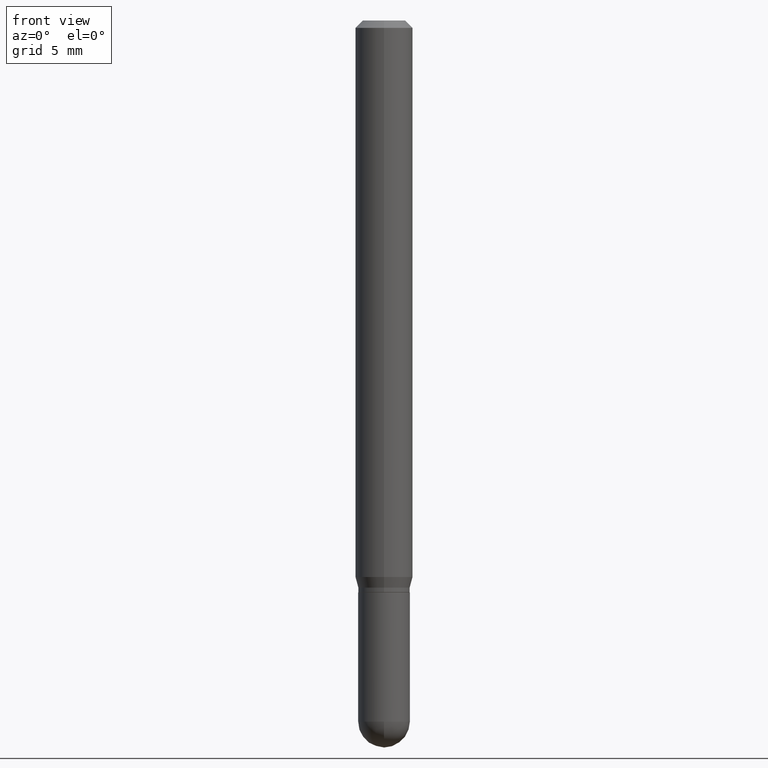
[diagram: clean part render]
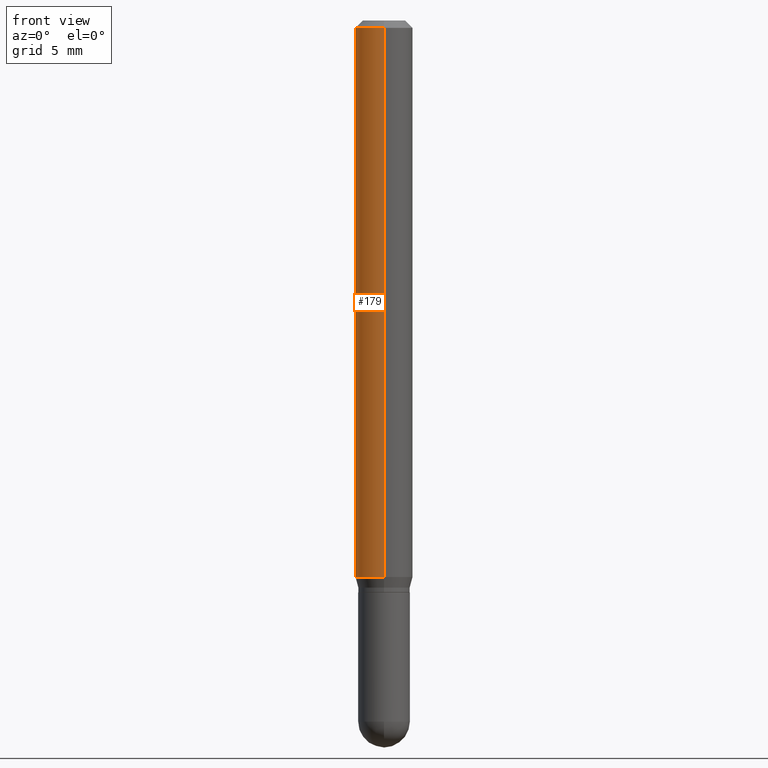
[diagram: same view with one face highlighted and labeled with its STEP entity id]
A machine part, front view. The second image highlights one B-rep face of the part: STEP entity #179.
In plain terms, the highlighted cylindrical surface (edge-blend (fillet) strip) has radius 1.4999 mm, axis along (-0, 0, 1).
Its self-contained STEP definition (entity closure, byte-faithful):
#20 = VECTOR ( 'NONE', #226, 39.37007874015748143 ) ;
#47 = ORIENTED_EDGE ( 'NONE', *, *, #97, .F. ) ;
#48 = CARTESIAN_POINT ( 'NONE',  ( 4.195754854663672510E-16, 0.05904999999999994281, -0.01500000000000029955 ) ) ;
#69 = CARTESIAN_POINT ( 'NONE',  ( -4.123439461173460774E-16, -0.05905000000000400207, -1.145180900235343913 ) ) ;
#97 = EDGE_CURVE ( 'NONE', #266, #203, #117, .T. ) ;
#106 = CARTESIAN_POINT ( 'NONE',  ( 3.668294337304873001E-31, -5.237091507743192669E-17, -0.01500000000000009139 ) ) ;
#114 = EDGE_CURVE ( 'NONE', #203, #503, #351, .T. ) ;
#115 = VERTEX_POINT ( 'NONE', #69 ) ;
#117 = LINE ( 'NONE', #470, #20 ) ;
#125 = DIRECTION ( 'NONE',  ( -2.445529558203233755E-29, 3.491394338495440431E-15, 1.000000000000000000 ) ) ;
#139 = EDGE_CURVE ( 'NONE', #115, #503, #385, .T. ) ;
#159 = DIRECTION ( 'NONE',  ( -6.982962677686265922E-15, -1.000000000000000000, 3.491394338495440431E-15 ) ) ;
#167 = AXIS2_PLACEMENT_3D ( 'NONE', #365, #125, #159 ) ;
#171 = DIRECTION ( 'NONE',  ( -2.445529558203233755E-29, 3.491394338495440431E-15, 1.000000000000000000 ) ) ;
#179 = ADVANCED_FACE ( 'NONE', ( #270 ), #360, .T. ) ;
#182 = ORIENTED_EDGE ( 'NONE', *, *, #377, .T. ) ;
#188 = VECTOR ( 'NONE', #438, 39.37007874015748143 ) ;
#203 = VERTEX_POINT ( 'NONE', #48 ) ;
#226 = DIRECTION ( 'NONE',  ( -2.445529558203233755E-29, 3.491394338495440431E-15, 1.000000000000000000 ) ) ;
#247 = CARTESIAN_POINT ( 'NONE',  ( 2.800573741015322024E-29, -3.998278111634791463E-15, -1.145180900235343913 ) ) ;
#265 = CARTESIAN_POINT ( 'NONE',  ( -4.123439461173736383E-16, -0.05905000000000005383, -0.01499999999999988495 ) ) ;
#266 = VERTEX_POINT ( 'NONE', #284 ) ;
#270 = FACE_OUTER_BOUND ( 'NONE', #350, .T. ) ;
#274 = CARTESIAN_POINT ( 'NONE',  ( -4.123439461173739834E-16, -0.05904999999999999832, 2.061668356881557438E-16 ) ) ;
#284 = CARTESIAN_POINT ( 'NONE',  ( 4.195754854663670538E-16, 0.05904999999999599458, -1.145180900235344135 ) ) ;
#293 = AXIS2_PLACEMENT_3D ( 'NONE', #106, #352, #477 ) ;
#324 = ORIENTED_EDGE ( 'NONE', *, *, #139, .T. ) ;
#335 = AXIS2_PLACEMENT_3D ( 'NONE', #247, #171, #454 ) ;
#350 = EDGE_LOOP ( 'NONE', ( #47, #182, #324, #458 ) ) ;
#351 = CIRCLE ( 'NONE', #293, 0.05904999999999999832 ) ;
#352 = DIRECTION ( 'NONE',  ( -2.445529558203233755E-29, 3.491394338495440431E-15, 1.000000000000000000 ) ) ;
#360 = CYLINDRICAL_SURFACE ( 'NONE', #167, 0.05904999999999999832 ) ;
#365 = CARTESIAN_POINT ( 'NONE',  ( 0.000000000000000000, 0.000000000000000000, 0.000000000000000000 ) ) ;
#377 = EDGE_CURVE ( 'NONE', #266, #115, #445, .T. ) ;
#385 = LINE ( 'NONE', #274, #188 ) ;
#438 = DIRECTION ( 'NONE',  ( -2.445529558203233755E-29, 3.491394338495440431E-15, 1.000000000000000000 ) ) ;
#445 = CIRCLE ( 'NONE', #335, 0.05904999999999999832 ) ;
#454 = DIRECTION ( 'NONE',  ( -6.982962677686265922E-15, -1.000000000000000000, 4.626330217890369336E-15 ) ) ;
#458 = ORIENTED_EDGE ( 'NONE', *, *, #114, .F. ) ;
#470 = CARTESIAN_POINT ( 'NONE',  ( 4.195754854663390985E-16, 0.05904999999999999832, -2.061668356881557438E-16 ) ) ;
#477 = DIRECTION ( 'NONE',  ( -6.982962677686265922E-15, -1.000000000000000000, 3.505890868245046092E-15 ) ) ;
#503 = VERTEX_POINT ( 'NONE', #265 ) ;